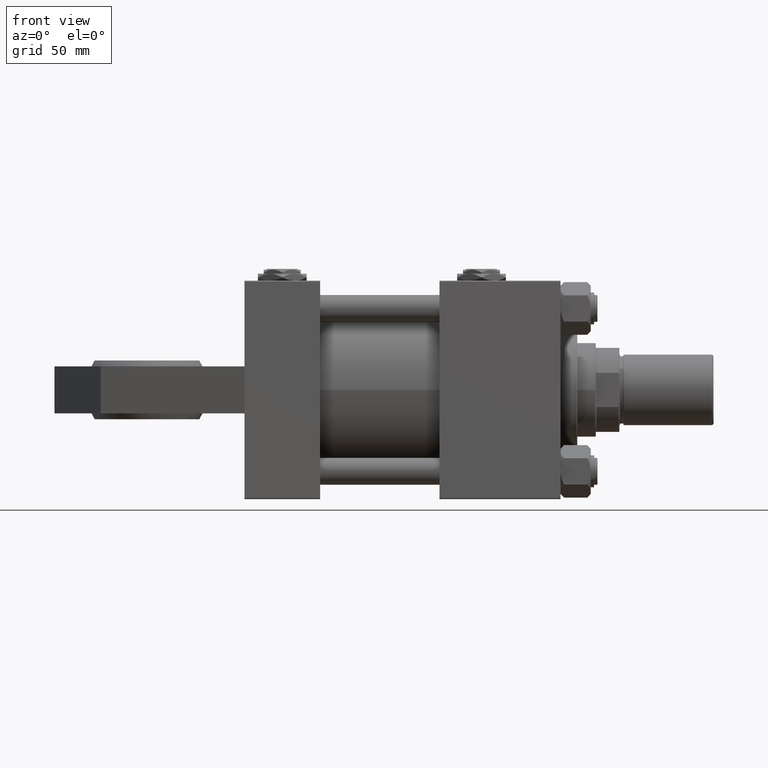
[diagram: clean part render]
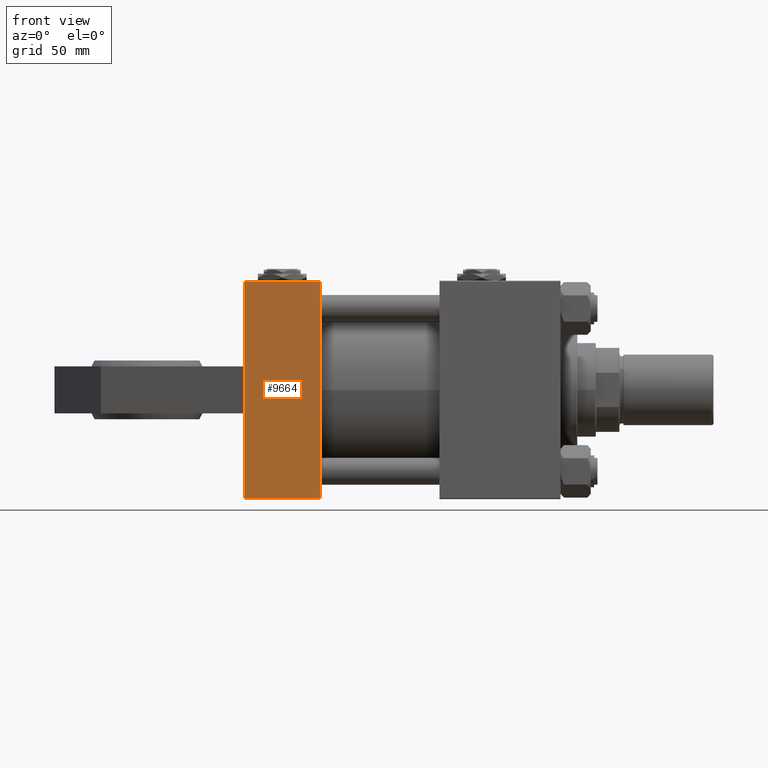
[diagram: same view with one face highlighted and labeled with its STEP entity id]
A machine part, front view. The second image highlights one B-rep face of the part: STEP entity #9664.
In plain terms, the highlighted planar face has unit normal (0, 1, 0).
Its self-contained STEP definition (entity closure, byte-faithful):
#3658 = DIRECTION ( 'NONE',  ( 0.000000000000000000, -1.000000000000000000, -1.067522139062650425E-16 ) ) ;
#4514 = VERTEX_POINT ( 'NONE', #42047 ) ;
#4715 = CARTESIAN_POINT ( 'NONE',  ( 0.000000000000000000, -14.00000000000000000, 65.00000000000000000 ) ) ;
#6126 = VERTEX_POINT ( 'NONE', #47611 ) ;
#7470 = VECTOR ( 'NONE', #49896, 1000.000000000000000 ) ;
#7707 = CARTESIAN_POINT ( 'NONE',  ( 0.000000000000000000, 65.00000000000000000, 65.00000000000001421 ) ) ;
#7785 = CARTESIAN_POINT ( 'NONE',  ( 45.00000000000000000, 65.00000000000000000, 65.00000000000001421 ) ) ;
#9664 = ADVANCED_FACE ( 'NONE', ( #11814 ), #48655, .F. ) ;
#11156 = AXIS2_PLACEMENT_3D ( 'NONE', #7785, #23917, #43846 ) ;
#11162 = CARTESIAN_POINT ( 'NONE',  ( 45.00000000000000000, -64.49999999999997158, 65.00000000000000000 ) ) ;
#11814 = FACE_OUTER_BOUND ( 'NONE', #12895, .T. ) ;
#12401 = LINE ( 'NONE', #45752, #44108 ) ;
#12611 = VECTOR ( 'NONE', #26995, 1000.000000000000000 ) ;
#12700 = DIRECTION ( 'NONE',  ( 0.000000000000000000, -1.000000000000000000, -1.067522139062650425E-16 ) ) ;
#12895 = EDGE_LOOP ( 'NONE', ( #27985, #27448, #25881, #29365, #16585, #29777 ) ) ;
#15420 = VERTEX_POINT ( 'NONE', #21298 ) ;
#16585 = ORIENTED_EDGE ( 'NONE', *, *, #48038, .F. ) ;
#20992 = DIRECTION ( 'NONE',  ( 1.000000000000000000, 0.000000000000000000, 0.000000000000000000 ) ) ;
#21298 = CARTESIAN_POINT ( 'NONE',  ( 45.00000000000000000, 64.49999999999997158, 65.00000000000001421 ) ) ;
#23917 = DIRECTION ( 'NONE',  ( 0.000000000000000000, 1.067522139062650548E-16, -1.000000000000000000 ) ) ;
#24063 = VERTEX_POINT ( 'NONE', #46140 ) ;
#25881 = ORIENTED_EDGE ( 'NONE', *, *, #29789, .T. ) ;
#26095 = CARTESIAN_POINT ( 'NONE',  ( 0.000000000000000000, -14.00000000000000000, 65.00000000000000000 ) ) ;
#26995 = DIRECTION ( 'NONE',  ( -1.000000000000000000, 0.000000000000000000, 0.000000000000000000 ) ) ;
#27448 = ORIENTED_EDGE ( 'NONE', *, *, #41581, .F. ) ;
#27985 = ORIENTED_EDGE ( 'NONE', *, *, #41412, .T. ) ;
#28567 = LINE ( 'NONE', #36369, #45407 ) ;
#29365 = ORIENTED_EDGE ( 'NONE', *, *, #33224, .T. ) ;
#29498 = VERTEX_POINT ( 'NONE', #26095 ) ;
#29662 = LINE ( 'NONE', #32437, #40690 ) ;
#29777 = ORIENTED_EDGE ( 'NONE', *, *, #40067, .T. ) ;
#29789 = EDGE_CURVE ( 'NONE', #29498, #6126, #29662, .T. ) ;
#30516 = CARTESIAN_POINT ( 'NONE',  ( 0.000000000000000000, 64.49999999999997158, 65.00000000000001421 ) ) ;
#30777 = LINE ( 'NONE', #30516, #12611 ) ;
#32437 = CARTESIAN_POINT ( 'NONE',  ( 0.000000000000000000, 65.00000000000000000, 65.00000000000001421 ) ) ;
#33224 = EDGE_CURVE ( 'NONE', #6126, #36257, #12401, .T. ) ;
#34560 = LINE ( 'NONE', #4715, #7470 ) ;
#36257 = VERTEX_POINT ( 'NONE', #11162 ) ;
#36369 = CARTESIAN_POINT ( 'NONE',  ( 45.00000000000000000, 65.00000000000000000, 65.00000000000001421 ) ) ;
#40067 = EDGE_CURVE ( 'NONE', #15420, #24063, #30777, .T. ) ;
#40690 = VECTOR ( 'NONE', #40783, 1000.000000000000000 ) ;
#40783 = DIRECTION ( 'NONE',  ( 0.000000000000000000, -1.000000000000000000, -1.067522139062650425E-16 ) ) ;
#41412 = EDGE_CURVE ( 'NONE', #24063, #4514, #45079, .T. ) ;
#41581 = EDGE_CURVE ( 'NONE', #29498, #4514, #34560, .T. ) ;
#42047 = CARTESIAN_POINT ( 'NONE',  ( 0.000000000000000000, 14.00000000000000000, 65.00000000000000000 ) ) ;
#43846 = DIRECTION ( 'NONE',  ( 0.000000000000000000, 1.000000000000000000, 1.067522139062650548E-16 ) ) ;
#44108 = VECTOR ( 'NONE', #20992, 1000.000000000000000 ) ;
#45079 = LINE ( 'NONE', #7707, #49580 ) ;
#45407 = VECTOR ( 'NONE', #12700, 1000.000000000000000 ) ;
#45752 = CARTESIAN_POINT ( 'NONE',  ( 45.00000000000000000, -64.49999999999997158, 65.00000000000000000 ) ) ;
#46140 = CARTESIAN_POINT ( 'NONE',  ( 0.000000000000000000, 64.49999999999997158, 65.00000000000001421 ) ) ;
#47611 = CARTESIAN_POINT ( 'NONE',  ( 0.000000000000000000, -64.49999999999997158, 65.00000000000000000 ) ) ;
#48038 = EDGE_CURVE ( 'NONE', #15420, #36257, #28567, .T. ) ;
#48655 = PLANE ( 'NONE',  #11156 ) ;
#49580 = VECTOR ( 'NONE', #3658, 1000.000000000000000 ) ;
#49896 = DIRECTION ( 'NONE',  ( 0.000000000000000000, 1.000000000000000000, 0.000000000000000000 ) ) ;